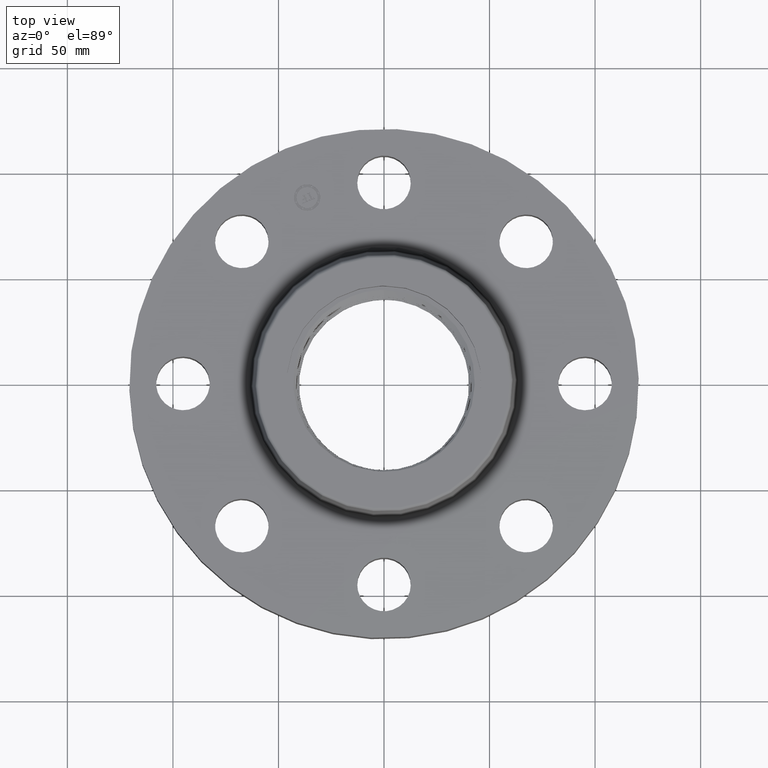
[diagram: clean part render]
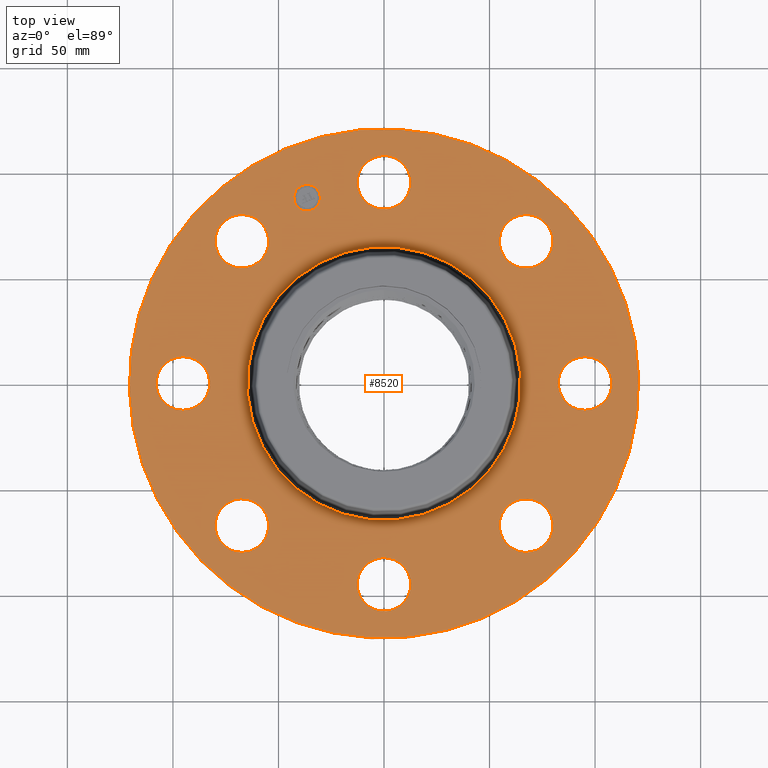
[diagram: same view with one face highlighted and labeled with its STEP entity id]
A machine part, top view. The second image highlights one B-rep face of the part: STEP entity #8520.
In plain terms, the highlighted planar face has unit normal (0, 0, -1).
Its self-contained STEP definition (entity closure, byte-faithful):
#423=AXIS2_PLACEMENT_3D('Circle Axis2P3D',#421,#422,$) ;
#440=AXIS2_PLACEMENT_3D('Circle Axis2P3D',#438,#439,$) ;
#480=AXIS2_PLACEMENT_3D('Circle Axis2P3D',#478,#479,$) ;
#497=AXIS2_PLACEMENT_3D('Circle Axis2P3D',#495,#496,$) ;
#537=AXIS2_PLACEMENT_3D('Circle Axis2P3D',#535,#536,$) ;
#554=AXIS2_PLACEMENT_3D('Circle Axis2P3D',#552,#553,$) ;
#594=AXIS2_PLACEMENT_3D('Circle Axis2P3D',#592,#593,$) ;
#611=AXIS2_PLACEMENT_3D('Circle Axis2P3D',#609,#610,$) ;
#651=AXIS2_PLACEMENT_3D('Circle Axis2P3D',#649,#650,$) ;
#668=AXIS2_PLACEMENT_3D('Circle Axis2P3D',#666,#667,$) ;
#708=AXIS2_PLACEMENT_3D('Circle Axis2P3D',#706,#707,$) ;
#725=AXIS2_PLACEMENT_3D('Circle Axis2P3D',#723,#724,$) ;
#765=AXIS2_PLACEMENT_3D('Circle Axis2P3D',#763,#764,$) ;
#782=AXIS2_PLACEMENT_3D('Circle Axis2P3D',#780,#781,$) ;
#1016=AXIS2_PLACEMENT_3D('Circle Axis2P3D',#1014,#1015,$) ;
#1042=AXIS2_PLACEMENT_3D('Circle Axis2P3D',#1040,#1041,$) ;
#1066=AXIS2_PLACEMENT_3D('Circle Axis2P3D',#1064,#1065,$) ;
#1085=AXIS2_PLACEMENT_3D('Circle Axis2P3D',#1083,#1084,$) ;
#1116=AXIS2_PLACEMENT_3D('Circle Axis2P3D',#1114,#1115,$) ;
#1128=AXIS2_PLACEMENT_3D('Circle Axis2P3D',#1126,#1127,$) ;
#8460=AXIS2_PLACEMENT_3D('Plane Axis2P3D',#8457,#8458,#8459) ;
#8504=AXIS2_PLACEMENT_3D('Circle Axis2P3D',#8502,#8503,$) ;
#8513=AXIS2_PLACEMENT_3D('Circle Axis2P3D',#8511,#8512,$) ;
#404=CARTESIAN_POINT('Vertex',(2.79242019503,2.17187561447,1.50000000001)) ;
#418=CARTESIAN_POINT('Vertex',(2.51088066389,3.13142524445,1.50000000001)) ;
#421=CARTESIAN_POINT('Axis2P3D Location',(2.65165042946,2.65165042946,1.50000000001)) ;
#438=CARTESIAN_POINT('Axis2P3D Location',(2.65165042946,2.65165042946,1.50000000001)) ;
#461=CARTESIAN_POINT('Vertex',(-0.438791280947,-3.51028723071,1.50000000001)) ;
#475=CARTESIAN_POINT('Vertex',(0.438791280947,-3.98971276932,1.50000000001)) ;
#478=CARTESIAN_POINT('Axis2P3D Location',(4.59242549682E-016,-3.75000000002,1.50000000001)) ;
#495=CARTESIAN_POINT('Axis2P3D Location',(4.59242549682E-016,-3.75000000002,1.50000000001)) ;
#518=CARTESIAN_POINT('Vertex',(-2.17187561447,2.79242019503,1.50000000001)) ;
#532=CARTESIAN_POINT('Vertex',(-3.13142524445,2.51088066389,1.50000000001)) ;
#535=CARTESIAN_POINT('Axis2P3D Location',(-2.65165042946,2.65165042946,1.50000000001)) ;
#552=CARTESIAN_POINT('Axis2P3D Location',(-2.65165042946,2.65165042946,1.50000000001)) ;
#575=CARTESIAN_POINT('Vertex',(2.17187561447,-2.79242019503,1.50000000001)) ;
#589=CARTESIAN_POINT('Vertex',(3.13142524445,-2.51088066389,1.50000000001)) ;
#592=CARTESIAN_POINT('Axis2P3D Location',(2.65165042946,-2.65165042946,1.50000000001)) ;
#609=CARTESIAN_POINT('Axis2P3D Location',(2.65165042946,-2.65165042946,1.50000000001)) ;
#632=CARTESIAN_POINT('Vertex',(-3.51028723071,0.438791280947,1.50000000001)) ;
#646=CARTESIAN_POINT('Vertex',(-3.98971276932,-0.438791280947,1.50000000001)) ;
#649=CARTESIAN_POINT('Axis2P3D Location',(-3.75000000002,-6.88863824523E-016,1.50000000001)) ;
#666=CARTESIAN_POINT('Axis2P3D Location',(-3.75000000002,-6.88863824523E-016,1.50000000001)) ;
#689=CARTESIAN_POINT('Vertex',(3.51028723071,-0.438791280947,1.50000000001)) ;
#703=CARTESIAN_POINT('Vertex',(3.98971276932,0.438791280947,1.50000000001)) ;
#706=CARTESIAN_POINT('Axis2P3D Location',(3.75000000002,2.29621274841E-016,1.50000000001)) ;
#723=CARTESIAN_POINT('Axis2P3D Location',(3.75000000002,2.29621274841E-016,1.50000000001)) ;
#746=CARTESIAN_POINT('Vertex',(-2.79242019503,-2.17187561447,1.50000000001)) ;
#760=CARTESIAN_POINT('Vertex',(-2.51088066389,-3.13142524445,1.50000000001)) ;
#763=CARTESIAN_POINT('Axis2P3D Location',(-2.65165042946,-2.65165042946,1.50000000001)) ;
#780=CARTESIAN_POINT('Axis2P3D Location',(-2.65165042946,-2.65165042946,1.50000000001)) ;
#1014=CARTESIAN_POINT('Axis2P3D Location',(0.,0.,1.50000000001)) ;
#1018=CARTESIAN_POINT('Vertex',(-1.22270099407,-2.23813915698,1.50000000001)) ;
#1020=CARTESIAN_POINT('Vertex',(1.22270099407,2.23813915698,1.50000000001)) ;
#1040=CARTESIAN_POINT('Axis2P3D Location',(0.,0.,1.50000000001)) ;
#1061=CARTESIAN_POINT('Vertex',(2.27727130838,4.168517169,1.50000000001)) ;
#1064=CARTESIAN_POINT('Axis2P3D Location',(0.,0.,1.50000000001)) ;
#1068=CARTESIAN_POINT('Vertex',(-2.27727130838,-4.168517169,1.50000000001)) ;
#1083=CARTESIAN_POINT('Axis2P3D Location',(0.,0.,1.50000000001)) ;
#1104=CARTESIAN_POINT('Vertex',(0.438791280947,3.51028723071,1.50000000001)) ;
#1111=CARTESIAN_POINT('Vertex',(-0.438791280947,3.98971276932,1.50000000001)) ;
#1114=CARTESIAN_POINT('Axis2P3D Location',(0.,3.75000000002,1.50000000001)) ;
#1126=CARTESIAN_POINT('Axis2P3D Location',(0.,3.75000000002,1.50000000001)) ;
#8457=CARTESIAN_POINT('Axis2P3D Location',(0.,4.75000000002,1.50000000001)) ;
#8502=CARTESIAN_POINT('Axis2P3D Location',(-1.43506287137,3.46454824693,1.50000000001)) ;
#8506=CARTESIAN_POINT('Vertex',(-1.66372305567,3.36983409742,1.50000000001)) ;
#8508=CARTESIAN_POINT('Vertex',(-1.20640268708,3.55926239644,1.50000000001)) ;
#8511=CARTESIAN_POINT('Axis2P3D Location',(-1.43506287137,3.46454824693,1.50000000001)) ;
#422=DIRECTION('Axis2P3D Direction',(0.,-0.,-0.0393700787402)) ;
#439=DIRECTION('Axis2P3D Direction',(0.,-0.,-0.0393700787402)) ;
#479=DIRECTION('Axis2P3D Direction',(-0.,0.,-0.0393700787402)) ;
#496=DIRECTION('Axis2P3D Direction',(-0.,0.,-0.0393700787402)) ;
#536=DIRECTION('Axis2P3D Direction',(0.,0.,-0.0393700787402)) ;
#553=DIRECTION('Axis2P3D Direction',(0.,0.,-0.0393700787402)) ;
#593=DIRECTION('Axis2P3D Direction',(-0.,0.,-0.0393700787402)) ;
#610=DIRECTION('Axis2P3D Direction',(-0.,0.,-0.0393700787402)) ;
#650=DIRECTION('Axis2P3D Direction',(0.,0.,-0.0393700787402)) ;
#667=DIRECTION('Axis2P3D Direction',(0.,0.,-0.0393700787402)) ;
#707=DIRECTION('Axis2P3D Direction',(0.,-0.,-0.0393700787402)) ;
#724=DIRECTION('Axis2P3D Direction',(0.,-0.,-0.0393700787402)) ;
#764=DIRECTION('Axis2P3D Direction',(0.,0.,-0.0393700787402)) ;
#781=DIRECTION('Axis2P3D Direction',(0.,0.,-0.0393700787402)) ;
#1015=DIRECTION('Axis2P3D Direction',(0.,0.,-0.0393700787402)) ;
#1041=DIRECTION('Axis2P3D Direction',(0.,0.,-0.0393700787402)) ;
#1065=DIRECTION('Axis2P3D Direction',(0.,0.,-0.0393700787402)) ;
#1084=DIRECTION('Axis2P3D Direction',(0.,0.,-0.0393700787402)) ;
#1115=DIRECTION('Axis2P3D Direction',(0.,-0.,-0.0393700787402)) ;
#1127=DIRECTION('Axis2P3D Direction',(0.,-0.,-0.0393700787402)) ;
#8458=DIRECTION('Axis2P3D Direction',(0.,0.,-0.0393700787402)) ;
#8459=DIRECTION('Axis2P3D XDirection',(0.0393700787402,0.,0.)) ;
#8503=DIRECTION('Axis2P3D Direction',(0.,0.,-0.0393700787402)) ;
#8512=DIRECTION('Axis2P3D Direction',(0.,0.,-0.0393700787402)) ;
#8463=ORIENTED_EDGE('',*,*,#1070,.F.) ;
#8464=ORIENTED_EDGE('',*,*,#1087,.F.) ;
#8467=ORIENTED_EDGE('',*,*,#1130,.T.) ;
#8468=ORIENTED_EDGE('',*,*,#1118,.T.) ;
#8471=ORIENTED_EDGE('',*,*,#1022,.T.) ;
#8472=ORIENTED_EDGE('',*,*,#1044,.T.) ;
#8475=ORIENTED_EDGE('',*,*,#425,.T.) ;
#8476=ORIENTED_EDGE('',*,*,#442,.T.) ;
#8479=ORIENTED_EDGE('',*,*,#710,.T.) ;
#8480=ORIENTED_EDGE('',*,*,#727,.T.) ;
#8483=ORIENTED_EDGE('',*,*,#596,.T.) ;
#8484=ORIENTED_EDGE('',*,*,#613,.T.) ;
#8487=ORIENTED_EDGE('',*,*,#482,.T.) ;
#8488=ORIENTED_EDGE('',*,*,#499,.T.) ;
#8491=ORIENTED_EDGE('',*,*,#767,.T.) ;
#8492=ORIENTED_EDGE('',*,*,#784,.T.) ;
#8495=ORIENTED_EDGE('',*,*,#653,.T.) ;
#8496=ORIENTED_EDGE('',*,*,#670,.T.) ;
#8499=ORIENTED_EDGE('',*,*,#539,.T.) ;
#8500=ORIENTED_EDGE('',*,*,#556,.T.) ;
#8517=ORIENTED_EDGE('',*,*,#8510,.T.) ;
#8518=ORIENTED_EDGE('',*,*,#8515,.T.) ;
#8469=FACE_BOUND('',#8466,.T.) ;
#8473=FACE_BOUND('',#8470,.T.) ;
#8477=FACE_BOUND('',#8474,.T.) ;
#8481=FACE_BOUND('',#8478,.T.) ;
#8485=FACE_BOUND('',#8482,.T.) ;
#8489=FACE_BOUND('',#8486,.T.) ;
#8493=FACE_BOUND('',#8490,.T.) ;
#8497=FACE_BOUND('',#8494,.T.) ;
#8501=FACE_BOUND('',#8498,.T.) ;
#8519=FACE_BOUND('',#8516,.T.) ;
#8520=ADVANCED_FACE('PartBody',(#8465,#8469,#8473,#8477,#8481,#8485,#8489,#8493,#8497,#8501,#8519),#8461,.F.) ;
#424=CIRCLE('generated circle',#423,0.500000000002) ;
#441=CIRCLE('generated circle',#440,0.500000000002) ;
#481=CIRCLE('generated circle',#480,0.500000000002) ;
#498=CIRCLE('generated circle',#497,0.500000000002) ;
#538=CIRCLE('generated circle',#537,0.500000000002) ;
#555=CIRCLE('generated circle',#554,0.500000000002) ;
#595=CIRCLE('generated circle',#594,0.500000000002) ;
#612=CIRCLE('generated circle',#611,0.500000000002) ;
#652=CIRCLE('generated circle',#651,0.500000000002) ;
#669=CIRCLE('generated circle',#668,0.500000000002) ;
#709=CIRCLE('generated circle',#708,0.500000000002) ;
#726=CIRCLE('generated circle',#725,0.500000000002) ;
#766=CIRCLE('generated circle',#765,0.500000000002) ;
#783=CIRCLE('generated circle',#782,0.500000000002) ;
#1017=CIRCLE('generated circle',#1016,2.55034597788) ;
#1043=CIRCLE('generated circle',#1042,2.55034597788) ;
#1067=CIRCLE('generated circle',#1066,4.75000000002) ;
#1086=CIRCLE('generated circle',#1085,4.75000000002) ;
#1117=CIRCLE('generated circle',#1116,0.500000000002) ;
#1129=CIRCLE('generated circle',#1128,0.500000000002) ;
#8505=CIRCLE('generated circle',#8504,0.247500000001) ;
#8514=CIRCLE('generated circle',#8513,0.247500000001) ;
#425=EDGE_CURVE('',#405,#419,#424,.T.) ;
#442=EDGE_CURVE('',#419,#405,#441,.T.) ;
#482=EDGE_CURVE('',#462,#476,#481,.T.) ;
#499=EDGE_CURVE('',#476,#462,#498,.T.) ;
#539=EDGE_CURVE('',#519,#533,#538,.T.) ;
#556=EDGE_CURVE('',#533,#519,#555,.T.) ;
#596=EDGE_CURVE('',#576,#590,#595,.T.) ;
#613=EDGE_CURVE('',#590,#576,#612,.T.) ;
#653=EDGE_CURVE('',#633,#647,#652,.T.) ;
#670=EDGE_CURVE('',#647,#633,#669,.T.) ;
#710=EDGE_CURVE('',#690,#704,#709,.T.) ;
#727=EDGE_CURVE('',#704,#690,#726,.T.) ;
#767=EDGE_CURVE('',#747,#761,#766,.T.) ;
#784=EDGE_CURVE('',#761,#747,#783,.T.) ;
#1022=EDGE_CURVE('',#1019,#1021,#1017,.T.) ;
#1044=EDGE_CURVE('',#1021,#1019,#1043,.T.) ;
#1070=EDGE_CURVE('',#1062,#1069,#1067,.T.) ;
#1087=EDGE_CURVE('',#1069,#1062,#1086,.T.) ;
#1118=EDGE_CURVE('',#1105,#1112,#1117,.T.) ;
#1130=EDGE_CURVE('',#1112,#1105,#1129,.T.) ;
#8510=EDGE_CURVE('',#8507,#8509,#8505,.T.) ;
#8515=EDGE_CURVE('',#8509,#8507,#8514,.T.) ;
#8462=EDGE_LOOP('',(#8463,#8464)) ;
#8466=EDGE_LOOP('',(#8467,#8468)) ;
#8470=EDGE_LOOP('',(#8471,#8472)) ;
#8474=EDGE_LOOP('',(#8475,#8476)) ;
#8478=EDGE_LOOP('',(#8479,#8480)) ;
#8482=EDGE_LOOP('',(#8483,#8484)) ;
#8486=EDGE_LOOP('',(#8487,#8488)) ;
#8490=EDGE_LOOP('',(#8491,#8492)) ;
#8494=EDGE_LOOP('',(#8495,#8496)) ;
#8498=EDGE_LOOP('',(#8499,#8500)) ;
#8516=EDGE_LOOP('',(#8517,#8518)) ;
#8465=FACE_OUTER_BOUND('',#8462,.T.) ;
#8461=PLANE('',#8460) ;
#405=VERTEX_POINT('',#404) ;
#419=VERTEX_POINT('',#418) ;
#462=VERTEX_POINT('',#461) ;
#476=VERTEX_POINT('',#475) ;
#519=VERTEX_POINT('',#518) ;
#533=VERTEX_POINT('',#532) ;
#576=VERTEX_POINT('',#575) ;
#590=VERTEX_POINT('',#589) ;
#633=VERTEX_POINT('',#632) ;
#647=VERTEX_POINT('',#646) ;
#690=VERTEX_POINT('',#689) ;
#704=VERTEX_POINT('',#703) ;
#747=VERTEX_POINT('',#746) ;
#761=VERTEX_POINT('',#760) ;
#1019=VERTEX_POINT('',#1018) ;
#1021=VERTEX_POINT('',#1020) ;
#1062=VERTEX_POINT('',#1061) ;
#1069=VERTEX_POINT('',#1068) ;
#1105=VERTEX_POINT('',#1104) ;
#1112=VERTEX_POINT('',#1111) ;
#8507=VERTEX_POINT('',#8506) ;
#8509=VERTEX_POINT('',#8508) ;